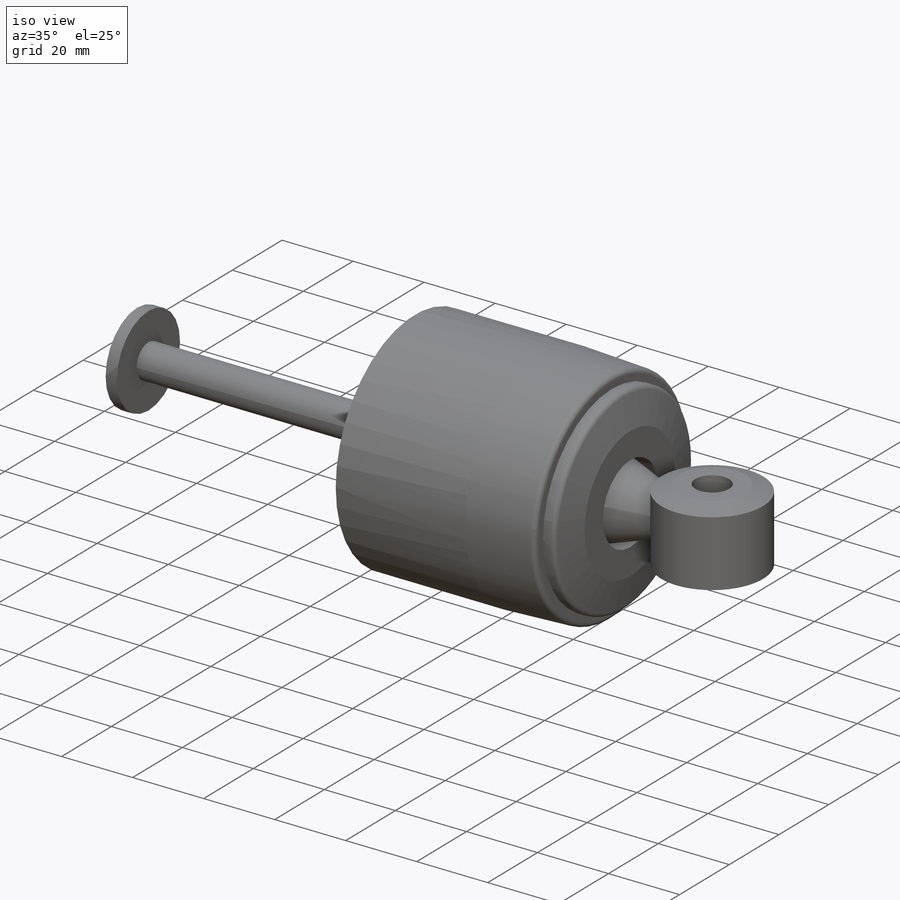
[diagram: iso view]
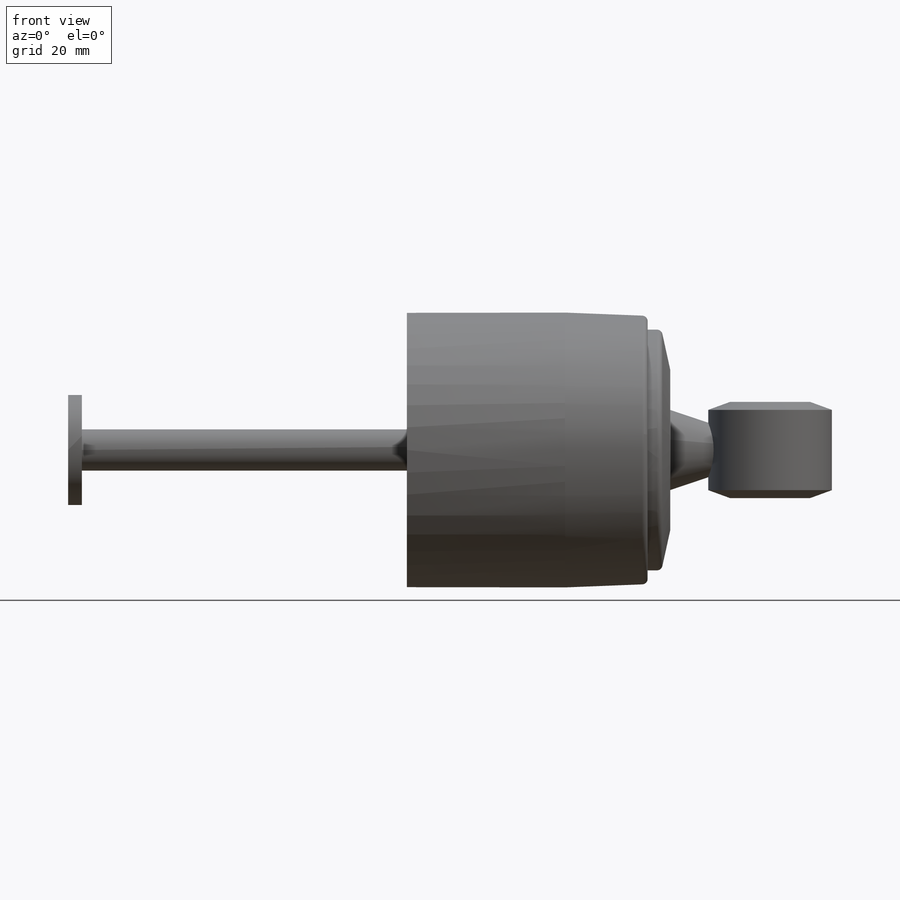
[diagram: front view]
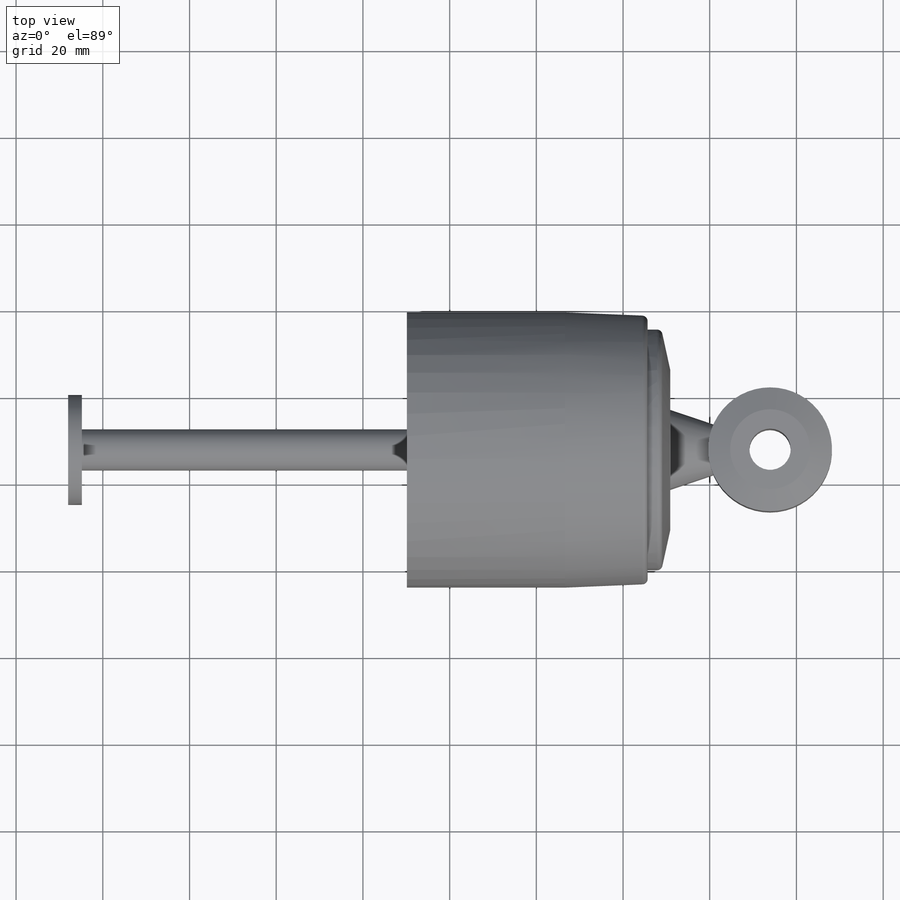
[diagram: top view]
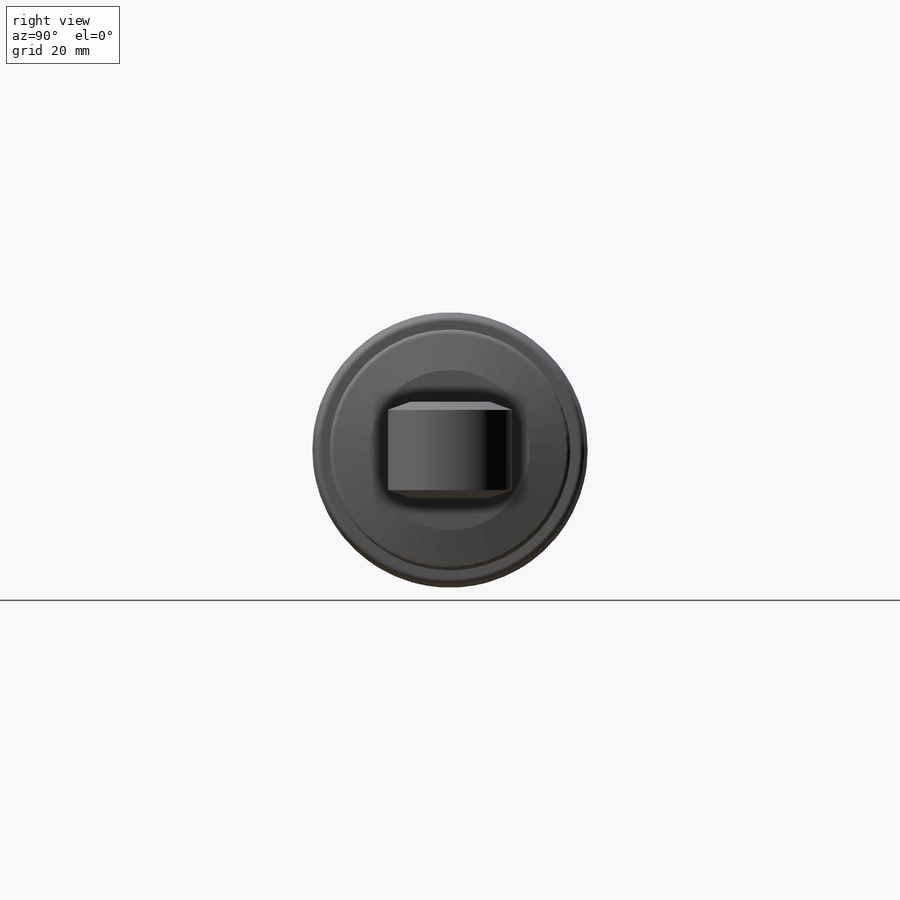
[diagram: right view]
SOLIDWORKS PART (.sldprt)
format: sldprt  version: not decoded by parser v0  size: 275,968 bytes
history: native  units: mm
features: sketch x3, revolve x2, material x1, extrude x1, chamfer x1, fillet x1 (+11 scaffold rows collapsed)
feature tree (20):
  scaffold x11  (default folders/planes/origin — collapsed)
  material  "Material <not specified>"
  sketch  "Sketch1"  dims[D1=3.175mm D2=106.68mm D3=25.4mm D4=9.525mm D5=11.43mm D6=6.35mm D7=16.002mm]
  revolve  "Revolve1"  Angle=360deg
  sketch  "Sketch2"  dims[D1=9.525mm D2=28.575mm D3=28.575mm]
  extrude  "Boss-Extrude1"  Depth=22.225mm
  chamfer  "Chamfer1"  Distance=5.08mm Angle=20deg
  sketch  "Sketch3"  dims[D1=~0.79375mm D2=63.5mm D3=36.5125mm D4=19.05mm D5=~0.79375mm D6=6.35mm D7=~0.79375mm D8=3.175mm D9=3.175mm D10=9.525mm D11=7.366mm D12=~10.102727mm D13=2.54mm]
  revolve  "Revolve2"  Angle=360deg
  fillet  "Fillet1"  Radius=1.27mm
decode coverage: 8 of 8 modeling features carry decoded parameters
note: ~ marks probable driven/reference dimensions
note: suppression state not decoded; provenance and decode notes live in map.json
